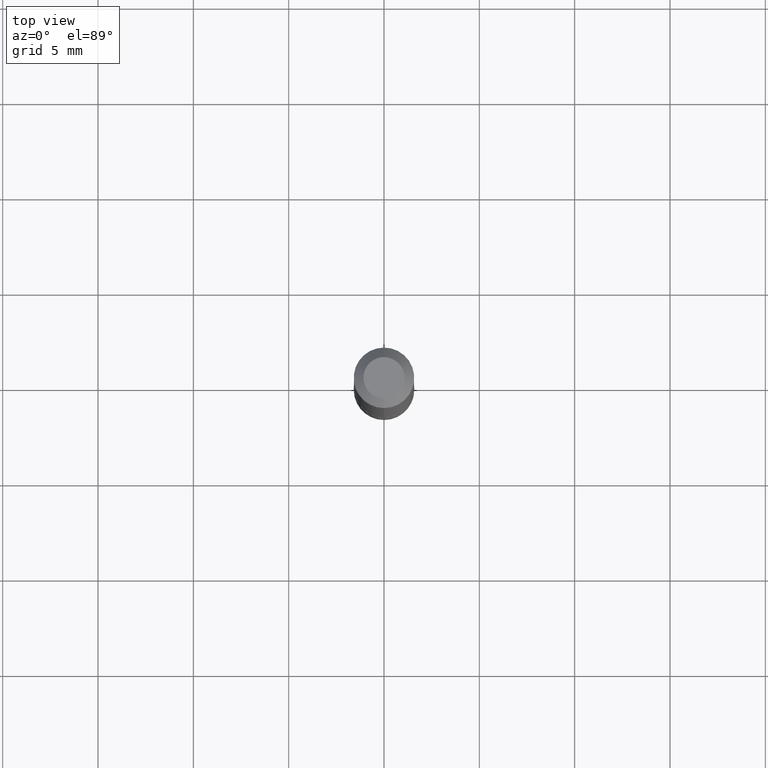
[diagram: clean part render]
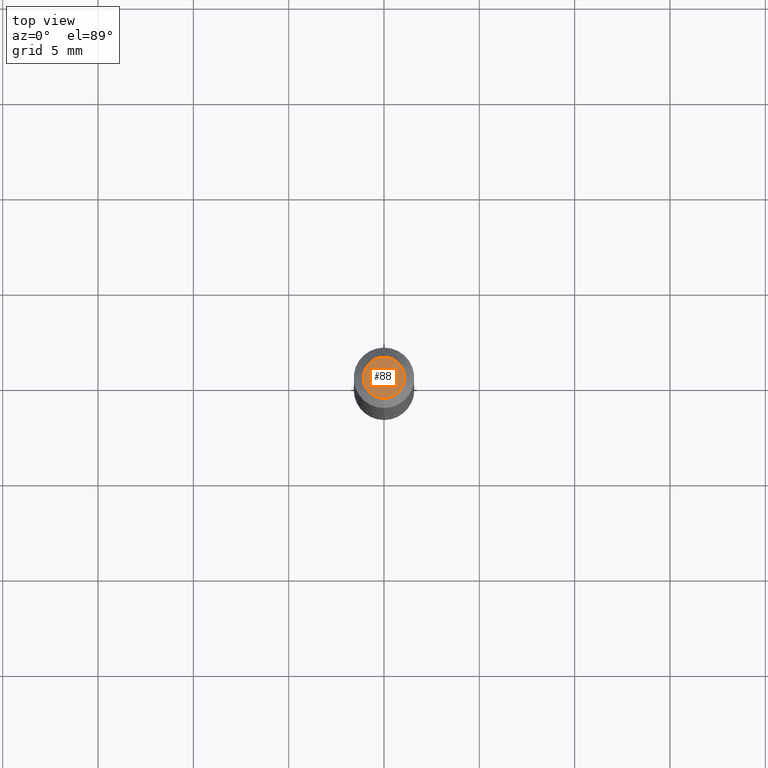
[diagram: same view with one face highlighted and labeled with its STEP entity id]
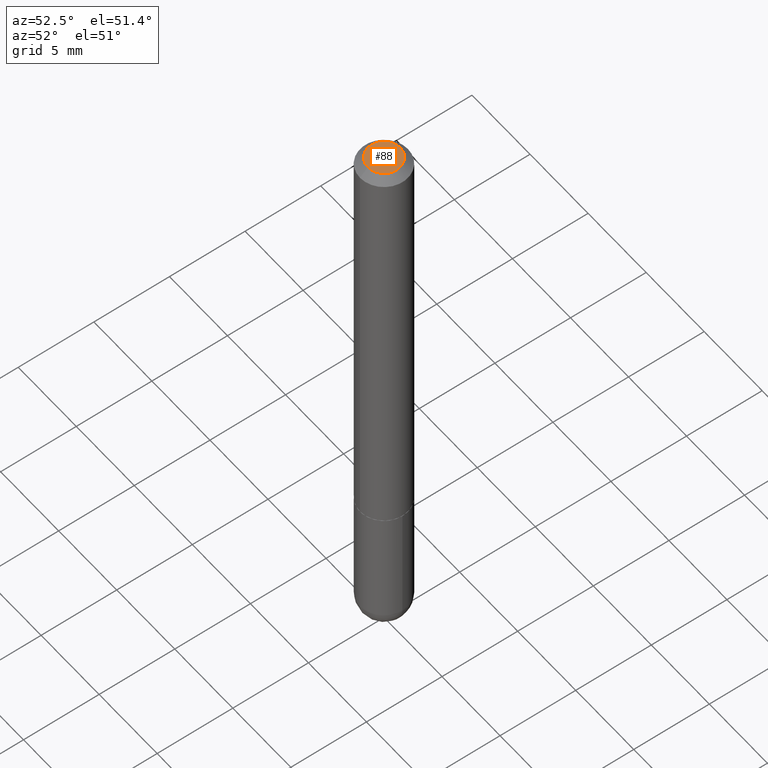
[diagram: same view with one face highlighted and labeled with its STEP entity id]
A machine part, top view. The second image highlights one B-rep face of the part: STEP entity #88.
A second angle (auxiliary view) of the same face is appended — the face is thin or edge-on in the first view.
In plain terms, the highlighted planar face has unit normal (0, -0, -1).
Its self-contained STEP definition (entity closure, byte-faithful):
#27 = CARTESIAN_POINT ( 'NONE',  ( -6.706145734425565363E-45, 9.413514263557746983E-31, 2.719240726277172169E-16 ) ) ;
#66 = DIRECTION ( 'NONE',  ( -2.466183177392588152E-29, 3.461817180285283687E-15, 1.000000000000000000 ) ) ;
#88 = ADVANCED_FACE ( 'NONE', ( #117 ), #261, .F. ) ;
#114 = AXIS2_PLACEMENT_3D ( 'NONE', #364, #332, #221 ) ;
#117 = FACE_OUTER_BOUND ( 'NONE', #374, .T. ) ;
#138 = DIRECTION ( 'NONE',  ( -6.982962677686266711E-15, -1.000000000000000000, 3.461817180285284476E-15 ) ) ;
#140 = AXIS2_PLACEMENT_3D ( 'NONE', #27, #318, #213 ) ;
#177 = EDGE_CURVE ( 'NONE', #412, #275, #186, .T. ) ;
#184 = CARTESIAN_POINT ( 'NONE',  ( -3.601761448830035670E-16, -0.04249999999999961448, 4.190513027898404513E-16 ) ) ;
#186 = CIRCLE ( 'NONE', #140, 0.04249999999999961448 ) ;
#213 = DIRECTION ( 'NONE',  ( -6.982962677686266711E-15, -1.000000000000000000, 3.461817180285284476E-15 ) ) ;
#221 = DIRECTION ( 'NONE',  ( 6.982962677686265922E-15, 1.000000000000000000, -3.461817180285283687E-15 ) ) ;
#229 = ORIENTED_EDGE ( 'NONE', *, *, #337, .T. ) ;
#247 = CARTESIAN_POINT ( 'NONE',  ( -6.706145734425565363E-45, 9.413514263557746983E-31, 2.719240726277172169E-16 ) ) ;
#261 = PLANE ( 'NONE',  #114 ) ;
#275 = VERTEX_POINT ( 'NONE', #184 ) ;
#277 = AXIS2_PLACEMENT_3D ( 'NONE', #247, #66, #138 ) ;
#280 = ORIENTED_EDGE ( 'NONE', *, *, #177, .T. ) ;
#289 = CIRCLE ( 'NONE', #277, 0.04249999999999961448 ) ;
#315 = CARTESIAN_POINT ( 'NONE',  ( 3.666055405785276810E-16, 0.04249999999999961448, 1.247968424655939579E-16 ) ) ;
#318 = DIRECTION ( 'NONE',  ( -2.466183177392588152E-29, 3.461817180285283687E-15, 1.000000000000000000 ) ) ;
#332 = DIRECTION ( 'NONE',  ( 2.466183177392587871E-29, -3.461817180285283687E-15, -1.000000000000000000 ) ) ;
#337 = EDGE_CURVE ( 'NONE', #275, #412, #289, .T. ) ;
#364 = CARTESIAN_POINT ( 'NONE',  ( 2.967759138016636432E-16, 0.04249999999999961448, -1.116519384826460588E-17 ) ) ;
#374 = EDGE_LOOP ( 'NONE', ( #280, #229 ) ) ;
#412 = VERTEX_POINT ( 'NONE', #315 ) ;